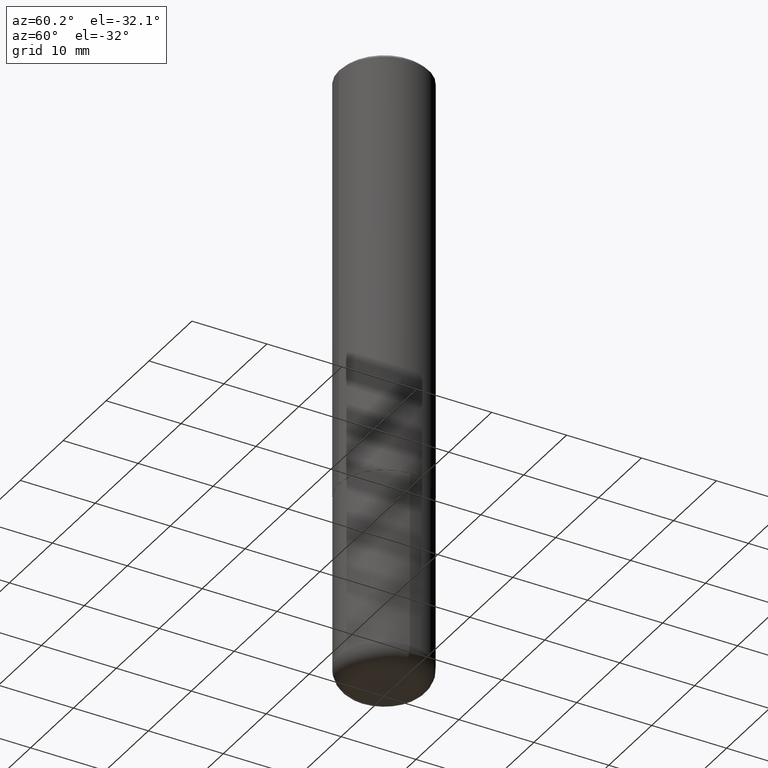
[diagram: clean part render]
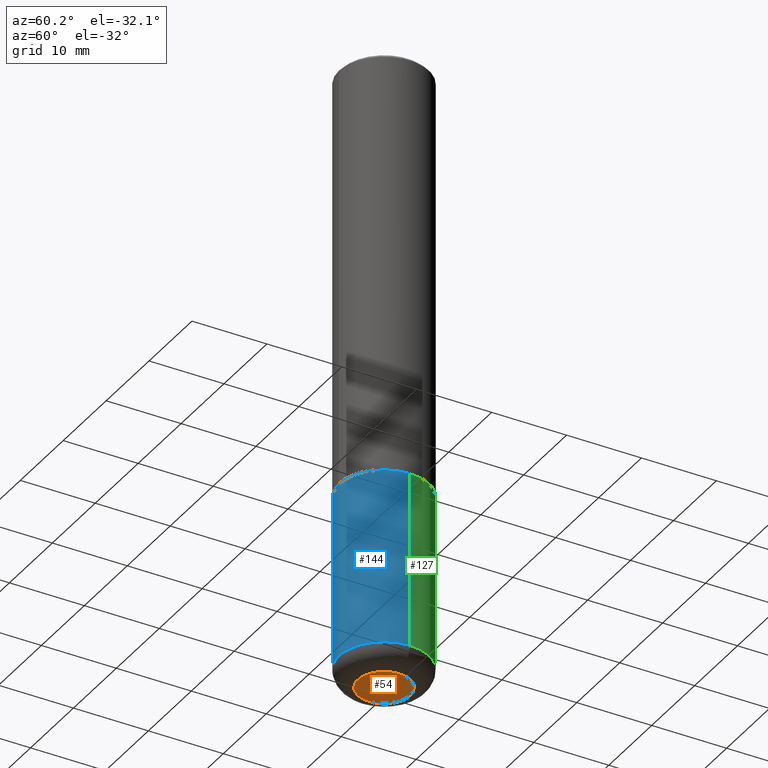
[diagram: same view with three faces highlighted in distinct colors, each labeled with its STEP entity id]
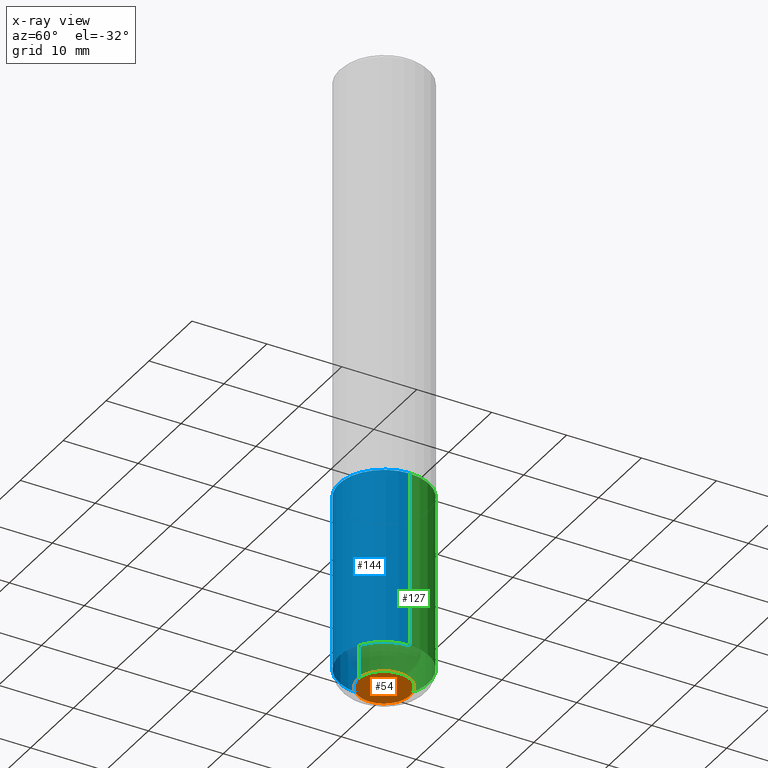
[diagram: x-ray of the same camera — body ghosted, the three highlighted faces saturated]
A machine part, auxiliary view with three faces highlighted in distinct colors.
The next image is the same camera in x-ray (body ghosted, the three faces saturated) — at least one of them is partly hidden behind the body in this view.
Their STEP definitions:

[orange] entity #54 — the highlighted planar face has unit normal (0, -0, -1).
#22 = ORIENTED_EDGE ( 'NONE', *, *, #99, .F. ) ;
#36 = CARTESIAN_POINT ( 'NONE',  ( 0.1378000000000000058, -1.237136582792291392E-14, -3.267700000000000049 ) ) ;
#51 = CIRCLE ( 'NONE', #120, 0.1378000000000000058 ) ;
#54 = ADVANCED_FACE ( 'NONE', ( #174 ), #290, .T. ) ;
#68 = AXIS2_PLACEMENT_3D ( 'NONE', #146, #270, #123 ) ;
#73 = VERTEX_POINT ( 'NONE', #216 ) ;
#81 = CARTESIAN_POINT ( 'NONE',  ( 7.991058417971171713E-29, -1.140911357093774644E-14, -3.267700000000000049 ) ) ;
#97 = EDGE_CURVE ( 'NONE', #353, #73, #385, .T. ) ;
#99 = EDGE_CURVE ( 'NONE', #73, #353, #51, .T. ) ;
#120 = AXIS2_PLACEMENT_3D ( 'NONE', #332, #224, #381 ) ;
#123 = DIRECTION ( 'NONE',  ( -1.000000000000000000, 6.982962677686265922E-15, -4.876176775795935793E-29 ) ) ;
#138 = DIRECTION ( 'NONE',  ( 1.000000000000000000, -6.982962677686265922E-15, 0.000000000000000000 ) ) ;
#146 = CARTESIAN_POINT ( 'NONE',  ( 7.991058417971171713E-29, -1.140911357093774644E-14, -3.267700000000000049 ) ) ;
#174 = FACE_OUTER_BOUND ( 'NONE', #349, .T. ) ;
#216 = CARTESIAN_POINT ( 'NONE',  ( -0.1378000000000000058, -9.908617773195276440E-15, -3.267700000000000049 ) ) ;
#224 = DIRECTION ( 'NONE',  ( -2.445468806185136597E-29, 3.491481338843145583E-15, 1.000000000000000000 ) ) ;
#267 = ORIENTED_EDGE ( 'NONE', *, *, #97, .F. ) ;
#270 = DIRECTION ( 'NONE',  ( 2.438088387897960049E-29, -3.491481338843145188E-15, -1.000000000000000000 ) ) ;
#290 = PLANE ( 'NONE',  #68 ) ;
#302 = AXIS2_PLACEMENT_3D ( 'NONE', #81, #376, #138 ) ;
#332 = CARTESIAN_POINT ( 'NONE',  ( 7.991058417971171713E-29, -1.140911357093774644E-14, -3.267700000000000049 ) ) ;
#349 = EDGE_LOOP ( 'NONE', ( #267, #22 ) ) ;
#353 = VERTEX_POINT ( 'NONE', #36 ) ;
#376 = DIRECTION ( 'NONE',  ( -2.445468806185136597E-29, 3.491481338843145583E-15, 1.000000000000000000 ) ) ;
#381 = DIRECTION ( 'NONE',  ( 1.000000000000000000, -6.982962677686265922E-15, 0.000000000000000000 ) ) ;
#385 = CIRCLE ( 'NONE', #302, 0.1378000000000000058 ) ;

[blue] entity #144 — the highlighted cylindrical surface (partial cylindrical patch) has radius 5.9995 mm, axis along (-0, 0, 1).
#3 = EDGE_CURVE ( 'NONE', #26, #408, #160, .T. ) ;
#7 = AXIS2_PLACEMENT_3D ( 'NONE', #327, #117, #329 ) ;
#16 = ORIENTED_EDGE ( 'NONE', *, *, #27, .T. ) ;
#26 = VERTEX_POINT ( 'NONE', #83 ) ;
#27 = EDGE_CURVE ( 'NONE', #85, #408, #326, .T. ) ;
#29 = EDGE_LOOP ( 'NONE', ( #346, #104, #16, #393 ) ) ;
#35 = VECTOR ( 'NONE', #188, 39.37007874015748143 ) ;
#37 = CARTESIAN_POINT ( 'NONE',  ( 7.750424287442554569E-29, -1.106555180719558034E-14, -3.169299999999999784 ) ) ;
#47 = CARTESIAN_POINT ( 'NONE',  ( 0.2361999999999999933, -1.649375784469496131E-15, 1.151752954443000088E-29 ) ) ;
#65 = LINE ( 'NONE', #418, #35 ) ;
#77 = AXIS2_PLACEMENT_3D ( 'NONE', #37, #100, #382 ) ;
#83 = CARTESIAN_POINT ( 'NONE',  ( -0.2362000000000000766, -7.772090597981385734E-15, -2.244100000000000428 ) ) ;
#85 = VERTEX_POINT ( 'NONE', #347 ) ;
#100 = DIRECTION ( 'NONE',  ( -2.445468806185136597E-29, 3.491481338843145583E-15, 1.000000000000000000 ) ) ;
#104 = ORIENTED_EDGE ( 'NONE', *, *, #365, .T. ) ;
#114 = FACE_OUTER_BOUND ( 'NONE', #29, .T. ) ;
#117 = DIRECTION ( 'NONE',  ( -2.445468806185136597E-29, 3.491481338843145583E-15, 1.000000000000000000 ) ) ;
#118 = VERTEX_POINT ( 'NONE', #366 ) ;
#119 = AXIS2_PLACEMENT_3D ( 'NONE', #151, #247, #367 ) ;
#144 = ADVANCED_FACE ( 'NONE', ( #114 ), #301, .T. ) ;
#151 = CARTESIAN_POINT ( 'NONE',  ( 5.487876547960065873E-29, -7.835233272497903917E-15, -2.244100000000000428 ) ) ;
#160 = CIRCLE ( 'NONE', #119, 0.2362000000000000210 ) ;
#182 = DIRECTION ( 'NONE',  ( -2.445468806185136877E-29, 3.491481338843145188E-15, 1.000000000000000000 ) ) ;
#184 = VECTOR ( 'NONE', #182, 39.37007874015748143 ) ;
#188 = DIRECTION ( 'NONE',  ( -2.445468806185136877E-29, 3.491481338843145188E-15, 1.000000000000000000 ) ) ;
#247 = DIRECTION ( 'NONE',  ( -2.445468806185136597E-29, 3.491481338843145583E-15, 1.000000000000000000 ) ) ;
#273 = EDGE_CURVE ( 'NONE', #118, #26, #65, .T. ) ;
#301 = CYLINDRICAL_SURFACE ( 'NONE', #7, 0.2361999999999999933 ) ;
#307 = CARTESIAN_POINT ( 'NONE',  ( 0.2362000000000000210, -9.484609056967400443E-15, -2.244100000000000428 ) ) ;
#326 = LINE ( 'NONE', #47, #184 ) ;
#327 = CARTESIAN_POINT ( 'NONE',  ( 0.000000000000000000, 0.000000000000000000, 0.000000000000000000 ) ) ;
#329 = DIRECTION ( 'NONE',  ( 1.000000000000000000, -6.982962677686266711E-15, 4.876176775795936353E-29 ) ) ;
#339 = CIRCLE ( 'NONE', #77, 0.2361999999999999933 ) ;
#346 = ORIENTED_EDGE ( 'NONE', *, *, #273, .F. ) ;
#347 = CARTESIAN_POINT ( 'NONE',  ( 0.2362000000000000766, -1.271492759166507844E-14, -3.169299999999999784 ) ) ;
#365 = EDGE_CURVE ( 'NONE', #118, #85, #339, .T. ) ;
#366 = CARTESIAN_POINT ( 'NONE',  ( -0.2362000000000000766, -9.387249865330223945E-15, -3.169299999999999784 ) ) ;
#367 = DIRECTION ( 'NONE',  ( 1.000000000000000000, -6.982962677686268288E-15, 0.000000000000000000 ) ) ;
#382 = DIRECTION ( 'NONE',  ( 1.000000000000000000, -6.982962677686265133E-15, 0.000000000000000000 ) ) ;
#393 = ORIENTED_EDGE ( 'NONE', *, *, #3, .F. ) ;
#408 = VERTEX_POINT ( 'NONE', #307 ) ;
#418 = CARTESIAN_POINT ( 'NONE',  ( -0.2361999999999999933, 1.678301941865356591E-15, -1.161852468318208757E-29 ) ) ;

[green] entity #127 — the highlighted cylindrical surface (partial cylindrical patch) has radius 5.9995 mm, axis along (-0, 0, 1).
#26 = VERTEX_POINT ( 'NONE', #83 ) ;
#27 = EDGE_CURVE ( 'NONE', #85, #408, #326, .T. ) ;
#34 = CARTESIAN_POINT ( 'NONE',  ( 5.487876547960065873E-29, -7.835233272497903917E-15, -2.244100000000000428 ) ) ;
#35 = VECTOR ( 'NONE', #188, 39.37007874015748143 ) ;
#42 = CIRCLE ( 'NONE', #287, 0.2362000000000000210 ) ;
#46 = CYLINDRICAL_SURFACE ( 'NONE', #315, 0.2361999999999999933 ) ;
#47 = CARTESIAN_POINT ( 'NONE',  ( 0.2361999999999999933, -1.649375784469496131E-15, 1.151752954443000088E-29 ) ) ;
#60 = ORIENTED_EDGE ( 'NONE', *, *, #273, .T. ) ;
#65 = LINE ( 'NONE', #418, #35 ) ;
#78 = CARTESIAN_POINT ( 'NONE',  ( 7.750424287442554569E-29, -1.106555180719558034E-14, -3.169299999999999784 ) ) ;
#83 = CARTESIAN_POINT ( 'NONE',  ( -0.2362000000000000766, -7.772090597981385734E-15, -2.244100000000000428 ) ) ;
#85 = VERTEX_POINT ( 'NONE', #347 ) ;
#88 = EDGE_CURVE ( 'NONE', #85, #118, #360, .T. ) ;
#118 = VERTEX_POINT ( 'NONE', #366 ) ;
#127 = ADVANCED_FACE ( 'NONE', ( #178 ), #46, .T. ) ;
#137 = ORIENTED_EDGE ( 'NONE', *, *, #88, .T. ) ;
#178 = FACE_OUTER_BOUND ( 'NONE', #331, .T. ) ;
#182 = DIRECTION ( 'NONE',  ( -2.445468806185136877E-29, 3.491481338843145188E-15, 1.000000000000000000 ) ) ;
#184 = VECTOR ( 'NONE', #182, 39.37007874015748143 ) ;
#187 = DIRECTION ( 'NONE',  ( 1.000000000000000000, -6.982962677686268288E-15, 0.000000000000000000 ) ) ;
#188 = DIRECTION ( 'NONE',  ( -2.445468806185136877E-29, 3.491481338843145188E-15, 1.000000000000000000 ) ) ;
#189 = DIRECTION ( 'NONE',  ( -2.445468806185136597E-29, 3.491481338843145583E-15, 1.000000000000000000 ) ) ;
#209 = DIRECTION ( 'NONE',  ( -2.445468806185136597E-29, 3.491481338843145583E-15, 1.000000000000000000 ) ) ;
#237 = DIRECTION ( 'NONE',  ( 1.000000000000000000, -6.982962677686265133E-15, 0.000000000000000000 ) ) ;
#269 = AXIS2_PLACEMENT_3D ( 'NONE', #78, #189, #237 ) ;
#273 = EDGE_CURVE ( 'NONE', #118, #26, #65, .T. ) ;
#287 = AXIS2_PLACEMENT_3D ( 'NONE', #34, #343, #187 ) ;
#307 = CARTESIAN_POINT ( 'NONE',  ( 0.2362000000000000210, -9.484609056967400443E-15, -2.244100000000000428 ) ) ;
#315 = AXIS2_PLACEMENT_3D ( 'NONE', #411, #209, #333 ) ;
#318 = ORIENTED_EDGE ( 'NONE', *, *, #27, .F. ) ;
#326 = LINE ( 'NONE', #47, #184 ) ;
#331 = EDGE_LOOP ( 'NONE', ( #137, #60, #399, #318 ) ) ;
#333 = DIRECTION ( 'NONE',  ( 1.000000000000000000, -6.982962677686266711E-15, 4.876176775795936353E-29 ) ) ;
#343 = DIRECTION ( 'NONE',  ( -2.445468806185136597E-29, 3.491481338843145583E-15, 1.000000000000000000 ) ) ;
#347 = CARTESIAN_POINT ( 'NONE',  ( 0.2362000000000000766, -1.271492759166507844E-14, -3.169299999999999784 ) ) ;
#360 = CIRCLE ( 'NONE', #269, 0.2361999999999999933 ) ;
#363 = EDGE_CURVE ( 'NONE', #408, #26, #42, .T. ) ;
#366 = CARTESIAN_POINT ( 'NONE',  ( -0.2362000000000000766, -9.387249865330223945E-15, -3.169299999999999784 ) ) ;
#399 = ORIENTED_EDGE ( 'NONE', *, *, #363, .F. ) ;
#408 = VERTEX_POINT ( 'NONE', #307 ) ;
#411 = CARTESIAN_POINT ( 'NONE',  ( 0.000000000000000000, 0.000000000000000000, 0.000000000000000000 ) ) ;
#418 = CARTESIAN_POINT ( 'NONE',  ( -0.2361999999999999933, 1.678301941865356591E-15, -1.161852468318208757E-29 ) ) ;